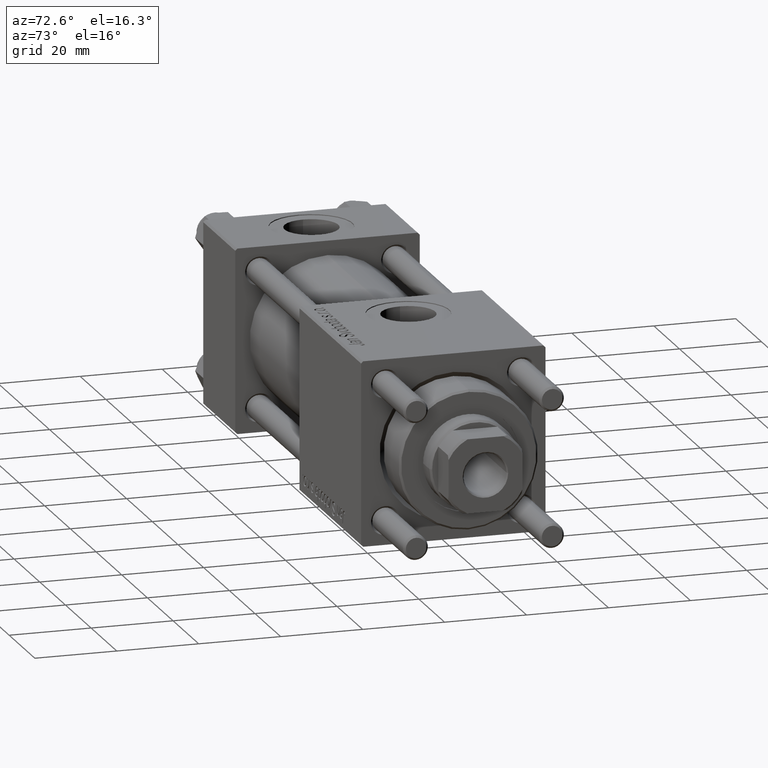
[diagram: clean part render]
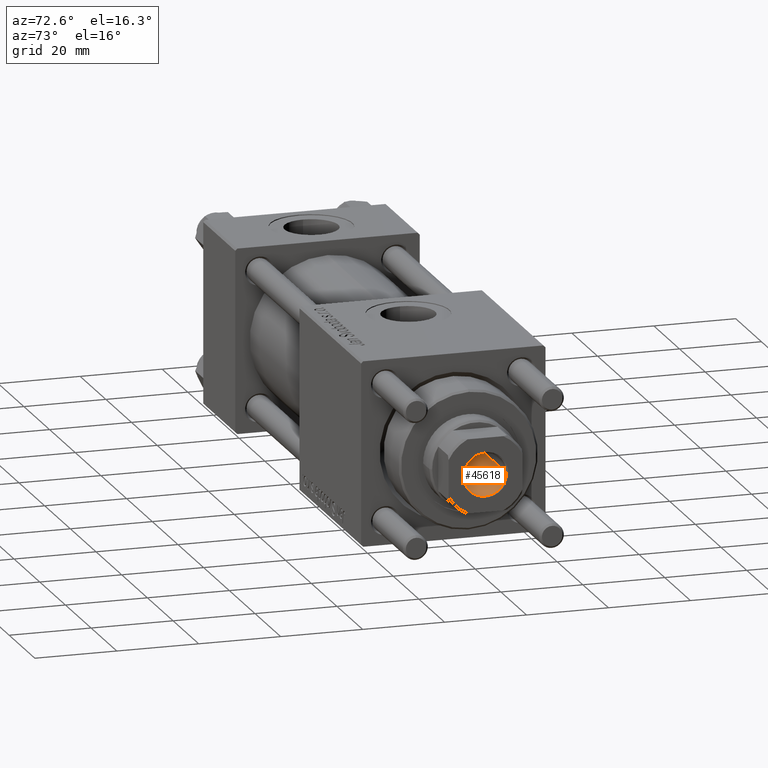
[diagram: same view with one face highlighted and labeled with its STEP entity id]
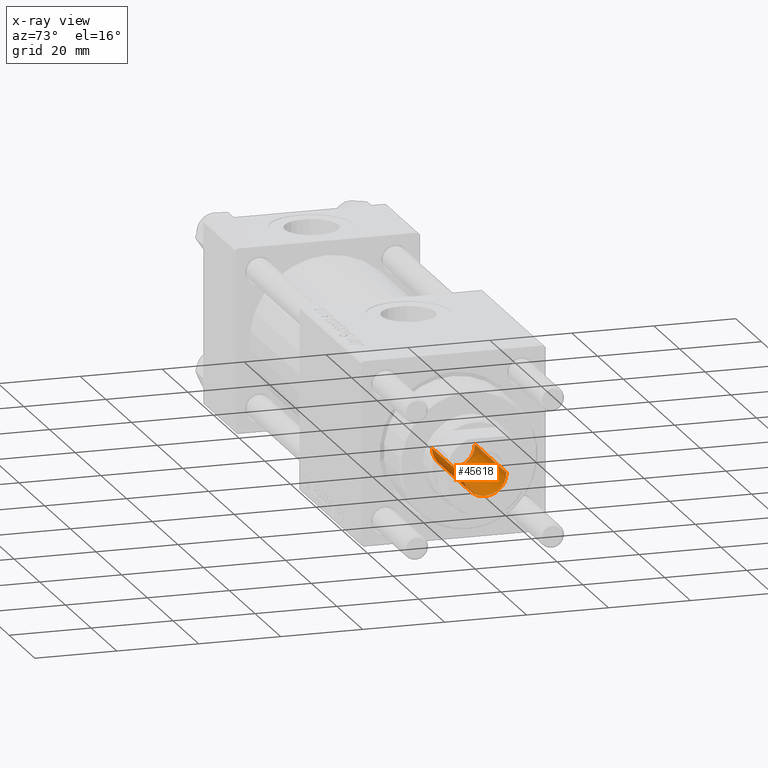
[diagram: x-ray of the same camera — body ghosted, the highlighted face saturated]
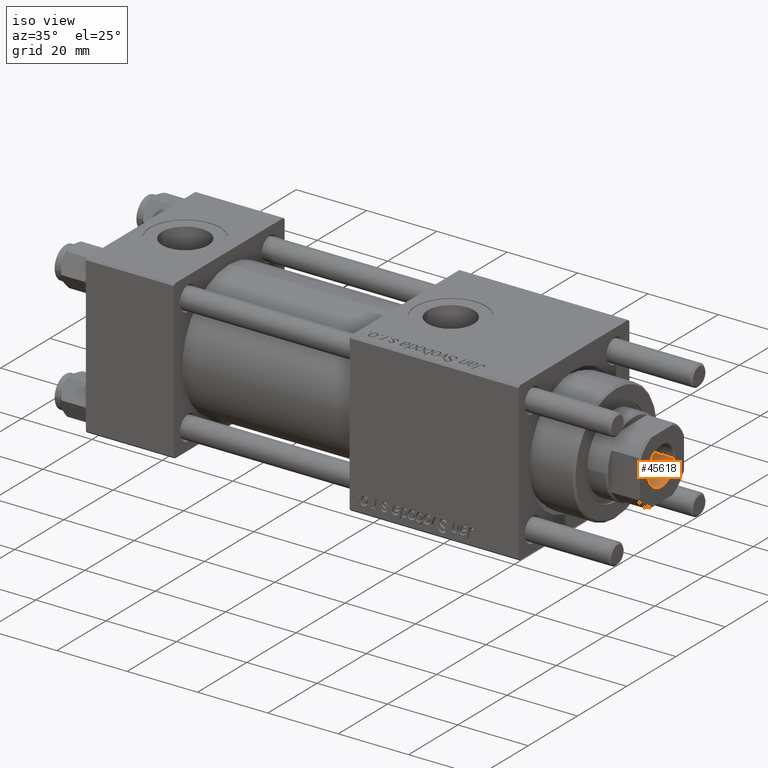
[diagram: same view with one face highlighted and labeled with its STEP entity id]
A machine part, auxiliary view. The second image highlights one B-rep face of the part: STEP entity #45618.
The next image is the same camera in x-ray: the body ghosted, the highlighted face saturated — about 9% of this face is hidden behind the body in this view.
A second angle (iso view) of the same face is appended — the face is thin or edge-on in the first view.
In plain terms, the highlighted cylindrical surface (edge-blend (fillet) strip) has radius 5.25 mm, axis along (1, 0, 0).
Its self-contained STEP definition (entity closure, byte-faithful):
#663 = LINE ( 'NONE', #53265, #34411 ) ;
#1332 = CIRCLE ( 'NONE', #11410, 5.249999999999997335 ) ;
#1618 = ORIENTED_EDGE ( 'NONE', *, *, #24493, .F. ) ;
#4951 = EDGE_LOOP ( 'NONE', ( #1618, #49819, #36364, #30692 ) ) ;
#5428 = EDGE_CURVE ( 'NONE', #47705, #23487, #8902, .T. ) ;
#8736 = VERTEX_POINT ( 'NONE', #38229 ) ;
#8902 = LINE ( 'NONE', #34798, #15442 ) ;
#9139 = EDGE_CURVE ( 'NONE', #47705, #8736, #35794, .T. ) ;
#11410 = AXIS2_PLACEMENT_3D ( 'NONE', #12028, #16627, #34200 ) ;
#12028 = CARTESIAN_POINT ( 'NONE',  ( 0.000000000000000000, 0.000000000000000000, 122.6999999999999744 ) ) ;
#13891 = DIRECTION ( 'NONE',  ( -0.000000000000000000, -0.000000000000000000, 1.000000000000000000 ) ) ;
#15442 = VECTOR ( 'NONE', #56332, 1000.000000000000000 ) ;
#16627 = DIRECTION ( 'NONE',  ( 0.000000000000000000, 0.000000000000000000, 1.000000000000000000 ) ) ;
#22482 = DIRECTION ( 'NONE',  ( 1.000000000000000000, 0.000000000000000000, 0.000000000000000000 ) ) ;
#22566 = CARTESIAN_POINT ( 'NONE',  ( 5.249999999999997335, 0.000000000000000000, 122.6999999999999744 ) ) ;
#23487 = VERTEX_POINT ( 'NONE', #22566 ) ;
#24464 = DIRECTION ( 'NONE',  ( 1.000000000000000000, 0.000000000000000000, 0.000000000000000000 ) ) ;
#24493 = EDGE_CURVE ( 'NONE', #8736, #36762, #663, .T. ) ;
#26420 = EDGE_CURVE ( 'NONE', #23487, #36762, #1332, .T. ) ;
#27081 = CARTESIAN_POINT ( 'NONE',  ( 0.000000000000000000, 0.000000000000000000, 98.00000000000000000 ) ) ;
#28510 = CYLINDRICAL_SURFACE ( 'NONE', #37611, 5.249999999999997335 ) ;
#29322 = AXIS2_PLACEMENT_3D ( 'NONE', #27081, #43789, #22482 ) ;
#30692 = ORIENTED_EDGE ( 'NONE', *, *, #26420, .T. ) ;
#34200 = DIRECTION ( 'NONE',  ( 1.000000000000000000, 0.000000000000000000, 0.000000000000000000 ) ) ;
#34411 = VECTOR ( 'NONE', #13891, 1000.000000000000000 ) ;
#34798 = CARTESIAN_POINT ( 'NONE',  ( 5.249999999999997335, 0.000000000000000000, 123.0000000000000000 ) ) ;
#35794 = CIRCLE ( 'NONE', #29322, 5.249999999999995559 ) ;
#36364 = ORIENTED_EDGE ( 'NONE', *, *, #5428, .T. ) ;
#36762 = VERTEX_POINT ( 'NONE', #38710 ) ;
#37611 = AXIS2_PLACEMENT_3D ( 'NONE', #46070, #55227, #24464 ) ;
#38229 = CARTESIAN_POINT ( 'NONE',  ( -5.249999999999995559, 6.429395695523600208E-16, 98.00000000000000000 ) ) ;
#38710 = CARTESIAN_POINT ( 'NONE',  ( -5.249999999999997335, 6.429395695523601195E-16, 122.6999999999999744 ) ) ;
#41480 = FACE_OUTER_BOUND ( 'NONE', #4951, .T. ) ;
#43789 = DIRECTION ( 'NONE',  ( -0.000000000000000000, -0.000000000000000000, 1.000000000000000000 ) ) ;
#44430 = CARTESIAN_POINT ( 'NONE',  ( 5.249999999999995559, 0.000000000000000000, 98.00000000000000000 ) ) ;
#45618 = ADVANCED_FACE ( 'NONE', ( #41480 ), #28510, .F. ) ;
#46070 = CARTESIAN_POINT ( 'NONE',  ( 0.000000000000000000, 0.000000000000000000, 123.0000000000000000 ) ) ;
#47705 = VERTEX_POINT ( 'NONE', #44430 ) ;
#49819 = ORIENTED_EDGE ( 'NONE', *, *, #9139, .F. ) ;
#53265 = CARTESIAN_POINT ( 'NONE',  ( -5.249999999999997335, 6.429395695523601195E-16, 123.0000000000000000 ) ) ;
#55227 = DIRECTION ( 'NONE',  ( -0.000000000000000000, -0.000000000000000000, 1.000000000000000000 ) ) ;
#56332 = DIRECTION ( 'NONE',  ( -0.000000000000000000, -0.000000000000000000, 1.000000000000000000 ) ) ;